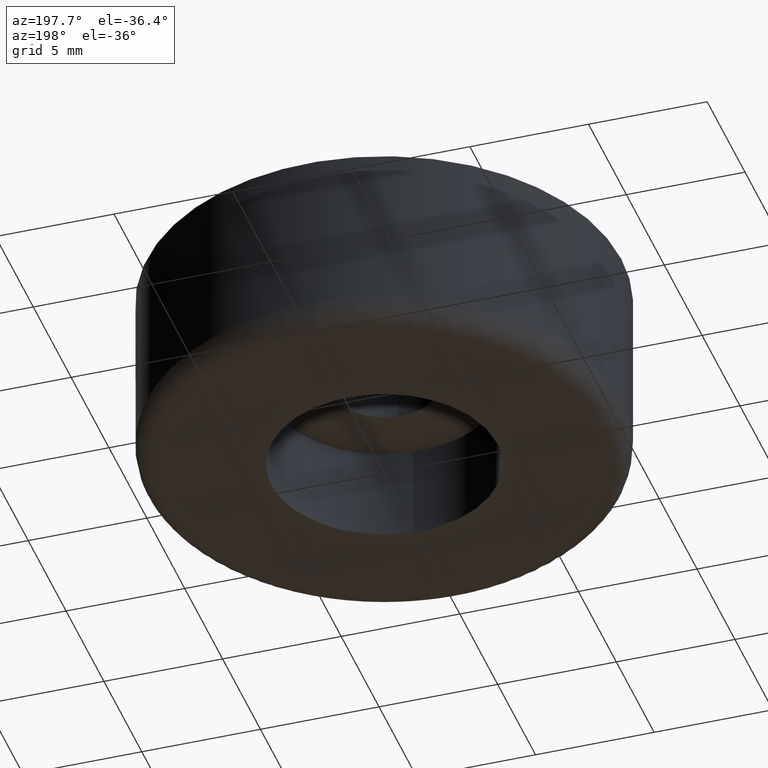
[diagram: clean part render]
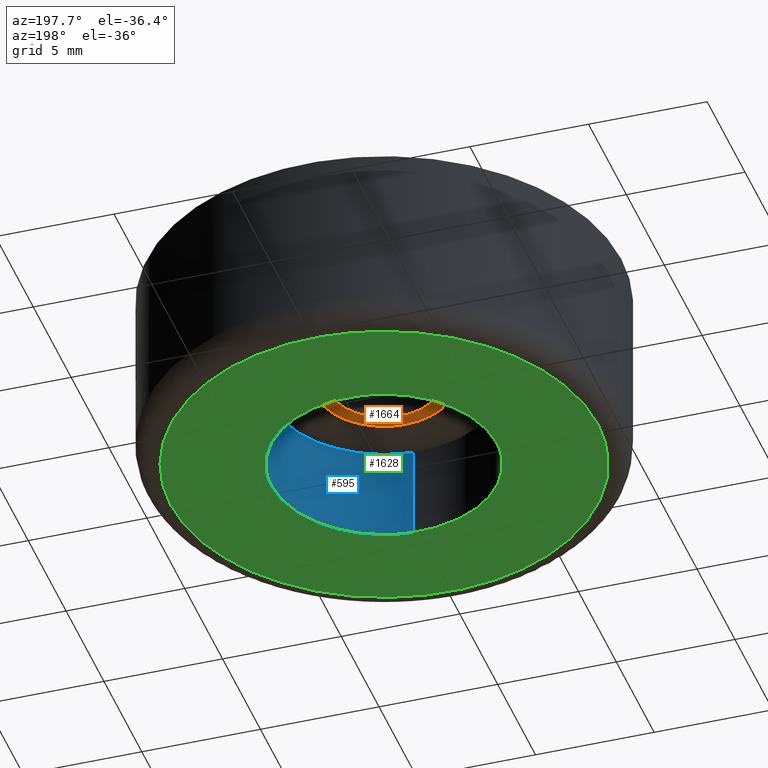
[diagram: same view with three faces highlighted in distinct colors, each labeled with its STEP entity id]
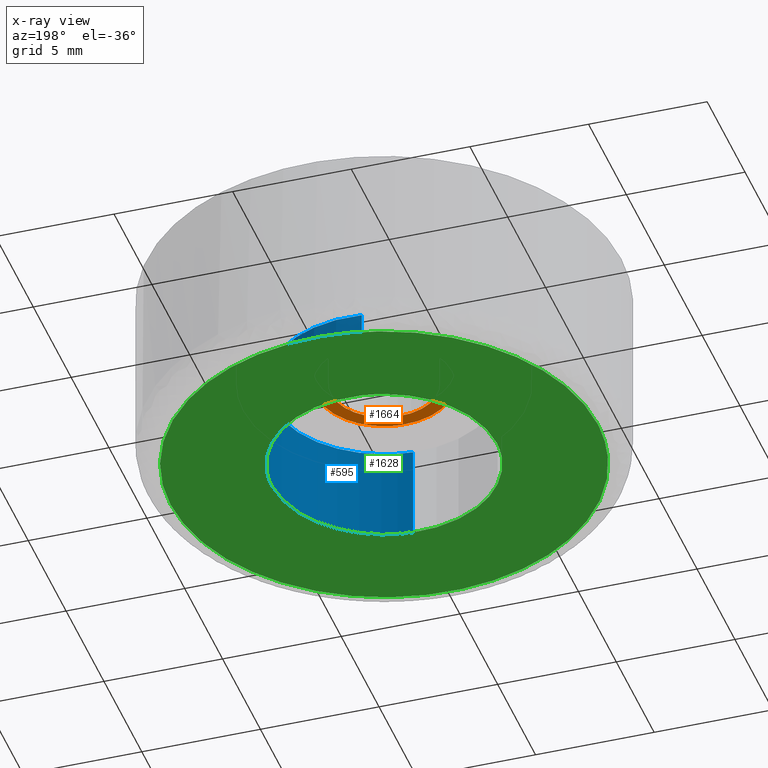
[diagram: x-ray of the same camera — body ghosted, the three highlighted faces saturated]
A machine part, auxiliary view with three faces highlighted in distinct colors.
The next image is the same camera in x-ray (body ghosted, the three faces saturated) — at least one of them is partly hidden behind the body in this view.
Their STEP definitions:

[orange] entity #1664 — the highlighted face is a freeform B-spline surface patch.
#940=CARTESIAN_POINT('',(-0.265572947441810,2.234271919344237,4.0));
#941=VERTEX_POINT('',#940);
#947=CARTESIAN_POINT('',(2.250000000000000,0.0,4.0));
#948=VERTEX_POINT('',#947);
#949=CARTESIAN_POINT('',(-0.265572947441810,2.234271919344238,4.0));
#950=CARTESIAN_POINT('',(-0.133252207379956,2.250000000000000,4.000000000000001));
#951=CARTESIAN_POINT('',(0.0,2.250000000000000,4.0));
#952=CARTESIAN_POINT('',(2.250000000000000,2.250000000000000,4.0));
#953=CARTESIAN_POINT('',(2.250000000000000,0.0,4.0));
#961=(BOUNDED_CURVE()B_SPLINE_CURVE(2,(#949,#950,#951,#952,#953),.UNSPECIFIED.,.F.,.U.)B_SPLINE_CURVE_WITH_KNOTS((3,2,3),(0.229562782172814,0.250000000000000,0.500000000000000),.UNSPECIFIED.)CURVE()GEOMETRIC_REPRESENTATION_ITEM()RATIONAL_B_SPLINE_CURVE((0.956027359169463,0.976056309948015,1.0,0.707106781186547,1.0))REPRESENTATION_ITEM(''));
#962=EDGE_CURVE('',#941,#948,#961,.T.);
#964=CARTESIAN_POINT('',(0.137359213972935,-2.245803296448007,4.0));
#965=VERTEX_POINT('',#964);
#966=CARTESIAN_POINT('',(2.250000000000000,0.0,4.0));
#967=CARTESIAN_POINT('',(2.250000000000000,-2.116588650500986,4.000000000000000));
#968=CARTESIAN_POINT('',(0.137359213972935,-2.245803296448008,4.000000000000001));
#976=(BOUNDED_CURVE()B_SPLINE_CURVE(2,(#966,#967,#968),.UNSPECIFIED.,.F.,.U.)B_SPLINE_CURVE_WITH_KNOTS((3,3),(0.500000000000000,0.739332962238972),.UNSPECIFIED.)CURVE()GEOMETRIC_REPRESENTATION_ITEM()RATIONAL_B_SPLINE_CURVE((1.0,0.719603993286676,0.976072041666779))REPRESENTATION_ITEM(''));
#977=EDGE_CURVE('',#948,#965,#976,.T.);
#1055=CARTESIAN_POINT('',(-2.250000000000000,0.0,4.0));
#1056=VERTEX_POINT('',#1055);
#1057=CARTESIAN_POINT('',(0.137359213972935,-2.245803296448008,4.000000000000001));
#1058=CARTESIAN_POINT('',(0.068743717441387,-2.250000000000000,4.000000000000001));
#1059=CARTESIAN_POINT('',(0.0,-2.250000000000000,4.0));
#1060=CARTESIAN_POINT('',(-2.250000000000000,-2.250000000000000,4.0));
#1061=CARTESIAN_POINT('',(-2.250000000000000,0.0,4.0));
#1069=(BOUNDED_CURVE()B_SPLINE_CURVE(2,(#1057,#1058,#1059,#1060,#1061),.UNSPECIFIED.,.F.,.U.)B_SPLINE_CURVE_WITH_KNOTS((3,2,3),(0.739332962238971,0.750000000000000,1.0),.UNSPECIFIED.)CURVE()GEOMETRIC_REPRESENTATION_ITEM()RATIONAL_B_SPLINE_CURVE((0.976072041666778,0.987502787899870,1.0,0.707106781186547,1.0))REPRESENTATION_ITEM(''));
#1070=EDGE_CURVE('',#965,#1056,#1069,.T.);
#1072=CARTESIAN_POINT('',(-2.250000000000000,0.0,4.0));
#1073=CARTESIAN_POINT('',(-2.250000000000000,1.998396358827245,4.000000000000000));
#1074=CARTESIAN_POINT('',(-0.265572947441810,2.234271919344238,4.0));
#1082=(BOUNDED_CURVE()B_SPLINE_CURVE(2,(#1072,#1073,#1074),.UNSPECIFIED.,.F.,.U.)B_SPLINE_CURVE_WITH_KNOTS((3,3),(0.0,0.229562782172814),.UNSPECIFIED.)CURVE()GEOMETRIC_REPRESENTATION_ITEM()RATIONAL_B_SPLINE_CURVE((1.0,0.731050471238532,0.956027359169463))REPRESENTATION_ITEM(''));
#1083=EDGE_CURVE('',#1056,#941,#1082,.T.);
#1111=CARTESIAN_POINT('',(-0.336397568788283,2.830077150134486,4.0));
#1112=VERTEX_POINT('',#1111);
#1113=CARTESIAN_POINT('',(2.850000000000000,0.0,4.0));
#1114=VERTEX_POINT('',#1113);
#1115=CARTESIAN_POINT('',(-0.336397568788284,2.830077150134486,4.0));
#1116=CARTESIAN_POINT('',(-0.168788741024640,2.850000000000001,4.000000000000000));
#1117=CARTESIAN_POINT('',(0.0,2.850000000000000,4.0));
#1118=CARTESIAN_POINT('',(2.850000000000000,2.850000000000000,4.0));
#1119=CARTESIAN_POINT('',(2.850000000000000,0.0,4.0));
#1127=(BOUNDED_CURVE()B_SPLINE_CURVE(2,(#1115,#1116,#1117,#1118,#1119),.UNSPECIFIED.,.F.,.U.)B_SPLINE_CURVE_WITH_KNOTS((3,2,3),(0.229562473513671,0.250000000000000,0.500000000000000),.UNSPECIFIED.)CURVE()GEOMETRIC_REPRESENTATION_ITEM()RATIONAL_B_SPLINE_CURVE((0.956026754184018,0.976055948331336,1.0,0.707106781186547,1.0))REPRESENTATION_ITEM(''));
#1128=EDGE_CURVE('',#1112,#1114,#1127,.T.);
#1169=CARTESIAN_POINT('',(0.173987271737828,-2.844684240697390,3.999999999999983));
#1170=VERTEX_POINT('',#1169);
#1176=CARTESIAN_POINT('',(2.850000000000000,0.0,4.0));
#1177=CARTESIAN_POINT('',(2.849999999999999,-2.681013297165420,4.000000000000001));
#1178=CARTESIAN_POINT('',(0.173987271737828,-2.844684240697390,3.999999999999984));
#1186=(BOUNDED_CURVE()B_SPLINE_CURVE(2,(#1176,#1177,#1178),.UNSPECIFIED.,.F.,.U.)B_SPLINE_CURVE_WITH_KNOTS((3,3),(0.500000000000000,0.739333026897277),.UNSPECIFIED.)CURVE()GEOMETRIC_REPRESENTATION_ITEM()RATIONAL_B_SPLINE_CURVE((1.0,0.719603917534760,0.976072180241874))REPRESENTATION_ITEM(''));
#1187=EDGE_CURVE('',#1114,#1170,#1186,.T.);
#1210=CARTESIAN_POINT('',(-2.850000000000000,0.0,4.0));
#1211=VERTEX_POINT('',#1210);
#1212=CARTESIAN_POINT('',(-2.850000000000000,0.0,4.0));
#1213=CARTESIAN_POINT('',(-2.850000000000000,2.531297398931633,4.0));
#1214=CARTESIAN_POINT('',(-0.336397568788284,2.830077150134486,4.0));
#1222=(BOUNDED_CURVE()B_SPLINE_CURVE(2,(#1212,#1213,#1214),.UNSPECIFIED.,.F.,.U.)B_SPLINE_CURVE_WITH_KNOTS((3,3),(0.0,0.229562473513671),.UNSPECIFIED.)CURVE()GEOMETRIC_REPRESENTATION_ITEM()RATIONAL_B_SPLINE_CURVE((1.0,0.731050832855212,0.956026754184018))REPRESENTATION_ITEM(''));
#1223=EDGE_CURVE('',#1211,#1112,#1222,.T.);
#1225=CARTESIAN_POINT('',(0.173987271737828,-2.844684240697390,3.999999999999984));
#1226=CARTESIAN_POINT('',(0.087074840938346,-2.850000000000000,4.0));
#1227=CARTESIAN_POINT('',(0.0,-2.850000000000000,4.0));
#1228=CARTESIAN_POINT('',(-2.850000000000000,-2.850000000000000,4.0));
#1229=CARTESIAN_POINT('',(-2.850000000000000,0.0,4.0));
#1237=(BOUNDED_CURVE()B_SPLINE_CURVE(2,(#1225,#1226,#1227,#1228,#1229),.UNSPECIFIED.,.F.,.U.)B_SPLINE_CURVE_WITH_KNOTS((3,2,3),(0.739333026897277,0.750000000000000,1.0),.UNSPECIFIED.)CURVE()GEOMETRIC_REPRESENTATION_ITEM()RATIONAL_B_SPLINE_CURVE((0.976072180241874,0.987502863651787,1.0,0.707106781186547,1.0))REPRESENTATION_ITEM(''));
#1238=EDGE_CURVE('',#1170,#1211,#1237,.T.);
#1647=CARTESIAN_POINT('',(-3.134714861572847,-3.134645729500548,4.0));
#1648=CARTESIAN_POINT('',(3.134714708686933,-3.134645729500548,4.0));
#1649=CARTESIAN_POINT('',(-3.134714861572847,3.134663158494727,4.0));
#1650=CARTESIAN_POINT('',(3.134714708686933,3.134663158494727,4.0));
#1651=B_SPLINE_SURFACE_WITH_KNOTS('',1,1,((#1647,#1649),(#1648,#1650)),.UNSPECIFIED.,.F.,.F.,.U.,(2,2),(2,2),(0.0,6.269429570259780),(0.0,6.269308887995274),.UNSPECIFIED.);
#1652=ORIENTED_EDGE('',*,*,#1223,.T.);
#1653=ORIENTED_EDGE('',*,*,#1128,.T.);
#1654=ORIENTED_EDGE('',*,*,#1187,.T.);
#1655=ORIENTED_EDGE('',*,*,#1238,.T.);
#1656=EDGE_LOOP('',(#1652,#1653,#1654,#1655));
#1657=FACE_OUTER_BOUND('',#1656,.T.);
#1658=ORIENTED_EDGE('',*,*,#977,.F.);
#1659=ORIENTED_EDGE('',*,*,#962,.F.);
#1660=ORIENTED_EDGE('',*,*,#1083,.F.);
#1661=ORIENTED_EDGE('',*,*,#1070,.F.);
#1662=EDGE_LOOP('',(#1658,#1659,#1660,#1661));
#1663=FACE_BOUND('',#1662,.T.);
#1664=ADVANCED_FACE('',(#1657,#1663),#1651,.F.);

[blue] entity #595 — the highlighted face is a freeform B-spline surface patch.
#493=CARTESIAN_POINT('',(-0.560662614619603,4.716795250227415,4.100000000000001));
#494=CARTESIAN_POINT('',(-0.425669961030394,4.732841173380876,4.100000000000000));
#495=CARTESIAN_POINT('',(-0.289980562790571,4.741140292503867,4.100000000000000));
#496=CARTESIAN_POINT('',(4.451159729713296,5.031120855294438,4.100000000000000));
#497=CARTESIAN_POINT('',(4.741140292503867,0.289980562790571,4.100000000000000));
#498=CARTESIAN_POINT('',(5.031120855294438,-4.451159729713296,4.100000000000000));
#499=CARTESIAN_POINT('',(0.289980562790571,-4.741140292503867,4.100000000000000));
#500=CARTESIAN_POINT('',(-0.560662614619603,4.716795250227415,-0.102500000000000));
#501=CARTESIAN_POINT('',(-0.425669961030394,4.732841173380876,-0.102500000000000));
#502=CARTESIAN_POINT('',(-0.289980562790571,4.741140292503867,-0.102500000000000));
#503=CARTESIAN_POINT('',(4.451159729713296,5.031120855294438,-0.102500000000000));
#504=CARTESIAN_POINT('',(4.741140292503867,0.289980562790571,-0.102500000000000));
#505=CARTESIAN_POINT('',(5.031120855294438,-4.451159729713296,-0.102500000000000));
#506=CARTESIAN_POINT('',(0.289980562790571,-4.741140292503867,-0.102500000000000));
#514=(BOUNDED_SURFACE()B_SPLINE_SURFACE(2,1,((#493,#500),(#494,#501),(#495,#502),(#496,#503),(#497,#504),(#498,#505),(#499,#506)),.UNSPECIFIED.,.F.,.F.,.U.)B_SPLINE_SURFACE_WITH_KNOTS((3,2,2,3),(2,2),(0.0,0.314802307403553,8.184859992492356,16.054917677581159),(0.0,4.202500000000000),.UNSPECIFIED.)GEOMETRIC_REPRESENTATION_ITEM()RATIONAL_B_SPLINE_SURFACE(((0.977505800795127,0.977505800795127),(0.988284271247462,0.988284271247462),(1.0,1.0),(0.707106781186548,0.707106781186548),(1.0,1.0),(0.707106781186548,0.707106781186548),(1.0,1.0)))REPRESENTATION_ITEM('')SURFACE());
#515=CARTESIAN_POINT('',(-0.560657902490310,4.716795810330636,-3.589747E-014));
#516=VERTEX_POINT('',#515);
#517=CARTESIAN_POINT('',(4.750000000000000,0.0,0.0));
#518=VERTEX_POINT('',#517);
#519=CARTESIAN_POINT('',(-0.560657902490310,4.716795810330636,-3.589747E-014));
#520=CARTESIAN_POINT('',(-0.281312187374265,4.750000000000000,0.0));
#521=CARTESIAN_POINT('',(0.0,4.750000000000000,0.0));
#522=CARTESIAN_POINT('',(4.750000000000000,4.750000000000000,0.0));
#523=CARTESIAN_POINT('',(4.750000000000000,0.0,0.0));
#531=(BOUNDED_CURVE()B_SPLINE_CURVE(2,(#519,#520,#521,#522,#523),.UNSPECIFIED.,.F.,.U.)B_SPLINE_CURVE_WITH_KNOTS((3,2,3),(0.229562642351722,0.250000000000000,0.500000000000000),.UNSPECIFIED.)CURVE()GEOMETRIC_REPRESENTATION_ITEM()RATIONAL_B_SPLINE_CURVE((0.956027085113775,0.976056146137416,1.0,0.707106781186548,1.0))REPRESENTATION_ITEM(''));
#532=EDGE_CURVE('',#516,#518,#531,.T.);
#533=ORIENTED_EDGE('',*,*,#532,.T.);
#534=CARTESIAN_POINT('',(0.289974620353292,-4.741140655951424,-3.846923E-014));
#535=VERTEX_POINT('',#534);
#536=CARTESIAN_POINT('',(4.750000000000000,0.0,0.0));
#537=CARTESIAN_POINT('',(4.750000000000001,-4.468359428803495,0.0));
#538=CARTESIAN_POINT('',(0.289974620353292,-4.741140655951424,-3.846923E-014));
#546=(BOUNDED_CURVE()B_SPLINE_CURVE(2,(#536,#537,#538),.UNSPECIFIED.,.F.,.U.)B_SPLINE_CURVE_WITH_KNOTS((3,3),(0.500000000000000,0.739333178508220),.UNSPECIFIED.)CURVE()GEOMETRIC_REPRESENTATION_ITEM()RATIONAL_B_SPLINE_CURVE((1.0,0.719603739911491,0.976072505173386))REPRESENTATION_ITEM(''));
#547=EDGE_CURVE('',#518,#535,#546,.T.);
#548=ORIENTED_EDGE('',*,*,#547,.T.);
#549=CARTESIAN_POINT('',(0.289974693720068,-4.741140651464304,4.0));
#550=VERTEX_POINT('',#549);
#551=CARTESIAN_POINT('',(0.289974693720068,-4.741140651464304,4.0));
#552=CARTESIAN_POINT('',(0.289974620353292,-4.741140655951424,-3.846923E-014));
#553=QUASI_UNIFORM_CURVE('',1,(#551,#552),.UNSPECIFIED.,.F.,.U.);
#554=EDGE_CURVE('',#550,#535,#553,.T.);
#555=ORIENTED_EDGE('',*,*,#554,.F.);
#556=CARTESIAN_POINT('',(4.750000000000000,0.0,4.0));
#557=VERTEX_POINT('',#556);
#558=CARTESIAN_POINT('',(4.750000000000000,0.0,4.0));
#559=CARTESIAN_POINT('',(4.750000000000000,-4.468359359528671,4.0));
#560=CARTESIAN_POINT('',(0.289974693720068,-4.741140651464304,4.0));
#568=(BOUNDED_CURVE()B_SPLINE_CURVE(2,(#558,#559,#560),.UNSPECIFIED.,.F.,.U.)B_SPLINE_CURVE_WITH_KNOTS((3,3),(0.500000000000000,0.739333175838144),.UNSPECIFIED.)CURVE()GEOMETRIC_REPRESENTATION_ITEM()RATIONAL_B_SPLINE_CURVE((1.0,0.719603743039680,0.976072499450894))REPRESENTATION_ITEM(''));
#569=EDGE_CURVE('',#557,#550,#568,.T.);
#570=ORIENTED_EDGE('',*,*,#569,.F.);
#571=CARTESIAN_POINT('',(-0.560657960675820,4.716795803414524,4.0));
#572=VERTEX_POINT('',#571);
#573=CARTESIAN_POINT('',(-0.560657960675820,4.716795803414524,4.000000000000000));
#574=CARTESIAN_POINT('',(-0.281312216774577,4.750000000000000,4.0));
#575=CARTESIAN_POINT('',(0.0,4.750000000000000,4.0));
#576=CARTESIAN_POINT('',(4.750000000000000,4.750000000000000,4.000000000000000));
#577=CARTESIAN_POINT('',(4.750000000000000,0.0,4.0));
#585=(BOUNDED_CURVE()B_SPLINE_CURVE(2,(#573,#574,#575,#576,#577),.UNSPECIFIED.,.F.,.U.)B_SPLINE_CURVE_WITH_KNOTS((3,2,3),(0.229562640266929,0.250000000000000,0.500000000000000),.UNSPECIFIED.)CURVE()GEOMETRIC_REPRESENTATION_ITEM()RATIONAL_B_SPLINE_CURVE((0.956027081027489,0.976056143694930,1.0,0.707106781186548,1.0))REPRESENTATION_ITEM(''));
#586=EDGE_CURVE('',#572,#557,#585,.T.);
#587=ORIENTED_EDGE('',*,*,#586,.F.);
#588=CARTESIAN_POINT('',(-0.560657960675820,4.716795803414524,4.0));
#589=CARTESIAN_POINT('',(-0.560657902490310,4.716795810330636,-3.589747E-014));
#590=QUASI_UNIFORM_CURVE('',1,(#588,#589),.UNSPECIFIED.,.F.,.U.);
#591=EDGE_CURVE('',#572,#516,#590,.T.);
#592=ORIENTED_EDGE('',*,*,#591,.T.);
#593=EDGE_LOOP('',(#533,#548,#555,#570,#587,#592));
#594=FACE_OUTER_BOUND('',#593,.T.);
#595=ADVANCED_FACE('',(#594),#514,.F.);

[green] entity #1628 — the highlighted face is a freeform B-spline surface patch.
#515=CARTESIAN_POINT('',(-0.560657902490310,4.716795810330636,-3.589747E-014));
#516=VERTEX_POINT('',#515);
#517=CARTESIAN_POINT('',(4.750000000000000,0.0,0.0));
#518=VERTEX_POINT('',#517);
#519=CARTESIAN_POINT('',(-0.560657902490310,4.716795810330636,-3.589747E-014));
#520=CARTESIAN_POINT('',(-0.281312187374265,4.750000000000000,0.0));
#521=CARTESIAN_POINT('',(0.0,4.750000000000000,0.0));
#522=CARTESIAN_POINT('',(4.750000000000000,4.750000000000000,0.0));
#523=CARTESIAN_POINT('',(4.750000000000000,0.0,0.0));
#531=(BOUNDED_CURVE()B_SPLINE_CURVE(2,(#519,#520,#521,#522,#523),.UNSPECIFIED.,.F.,.U.)B_SPLINE_CURVE_WITH_KNOTS((3,2,3),(0.229562642351722,0.250000000000000,0.500000000000000),.UNSPECIFIED.)CURVE()GEOMETRIC_REPRESENTATION_ITEM()RATIONAL_B_SPLINE_CURVE((0.956027085113775,0.976056146137416,1.0,0.707106781186548,1.0))REPRESENTATION_ITEM(''));
#532=EDGE_CURVE('',#516,#518,#531,.T.);
#534=CARTESIAN_POINT('',(0.289974620353292,-4.741140655951424,-3.846923E-014));
#535=VERTEX_POINT('',#534);
#536=CARTESIAN_POINT('',(4.750000000000000,0.0,0.0));
#537=CARTESIAN_POINT('',(4.750000000000001,-4.468359428803495,0.0));
#538=CARTESIAN_POINT('',(0.289974620353292,-4.741140655951424,-3.846923E-014));
#546=(BOUNDED_CURVE()B_SPLINE_CURVE(2,(#536,#537,#538),.UNSPECIFIED.,.F.,.U.)B_SPLINE_CURVE_WITH_KNOTS((3,3),(0.500000000000000,0.739333178508220),.UNSPECIFIED.)CURVE()GEOMETRIC_REPRESENTATION_ITEM()RATIONAL_B_SPLINE_CURVE((1.0,0.719603739911491,0.976072505173386))REPRESENTATION_ITEM(''));
#547=EDGE_CURVE('',#518,#535,#546,.T.);
#614=CARTESIAN_POINT('',(-4.750000000000000,0.0,0.0));
#615=VERTEX_POINT('',#614);
#616=CARTESIAN_POINT('',(-4.750000000000000,0.0,0.0));
#617=CARTESIAN_POINT('',(-4.750000000000000,4.218833242595861,0.0));
#618=CARTESIAN_POINT('',(-0.560657902490310,4.716795810330636,-3.589747E-014));
#626=(BOUNDED_CURVE()B_SPLINE_CURVE(2,(#616,#617,#618),.UNSPECIFIED.,.F.,.U.)B_SPLINE_CURVE_WITH_KNOTS((3,3),(0.0,0.229562642351722),.UNSPECIFIED.)CURVE()GEOMETRIC_REPRESENTATION_ITEM()RATIONAL_B_SPLINE_CURVE((1.0,0.731050635049131,0.956027085113775))REPRESENTATION_ITEM(''));
#627=EDGE_CURVE('',#615,#516,#626,.T.);
#661=CARTESIAN_POINT('',(0.289974620353292,-4.741140655951424,-3.846923E-014));
#662=CARTESIAN_POINT('',(0.145122646118935,-4.750000000000000,0.0));
#663=CARTESIAN_POINT('',(0.0,-4.750000000000000,0.0));
#664=CARTESIAN_POINT('',(-4.750000000000000,-4.750000000000000,0.0));
#665=CARTESIAN_POINT('',(-4.750000000000000,0.0,0.0));
#673=(BOUNDED_CURVE()B_SPLINE_CURVE(2,(#661,#662,#663,#664,#665),.UNSPECIFIED.,.F.,.U.)B_SPLINE_CURVE_WITH_KNOTS((3,2,3),(0.739333178508220,0.750000000000000,1.0),.UNSPECIFIED.)CURVE()GEOMETRIC_REPRESENTATION_ITEM()RATIONAL_B_SPLINE_CURVE((0.976072505173386,0.987503041275057,1.0,0.707106781186548,1.0))REPRESENTATION_ITEM(''));
#674=EDGE_CURVE('',#535,#615,#673,.T.);
#1490=CARTESIAN_POINT('',(-0.226170859030829,8.997157703990462,1.874299E-016));
#1491=VERTEX_POINT('',#1490);
#1492=CARTESIAN_POINT('',(9.0,0.0,0.0));
#1493=VERTEX_POINT('',#1492);
#1494=CARTESIAN_POINT('',(-0.226170859030829,8.997157703990462,1.874299E-016));
#1495=CARTESIAN_POINT('',(-0.113103289140123,8.999999999999998,0.0));
#1496=CARTESIAN_POINT('',(0.0,9.0,0.0));
#1497=CARTESIAN_POINT('',(9.0,9.0,0.0));
#1498=CARTESIAN_POINT('',(9.0,0.0,0.0));
#1506=(BOUNDED_CURVE()B_SPLINE_CURVE(2,(#1494,#1495,#1496,#1497,#1498),.UNSPECIFIED.,.F.,.U.)B_SPLINE_CURVE_WITH_KNOTS((3,2,3),(0.245579891768653,0.250000000000000,0.500000000000000),.UNSPECIFIED.)CURVE()GEOMETRIC_REPRESENTATION_ITEM()RATIONAL_B_SPLINE_CURVE((0.989826157678966,0.994821521090467,1.0,0.707106781186547,1.0))REPRESENTATION_ITEM(''));
#1507=EDGE_CURVE('',#1491,#1493,#1506,.T.);
#1526=CARTESIAN_POINT('',(-8.997157704003575,-0.226170859032163,1.874299E-016));
#1527=VERTEX_POINT('',#1526);
#1541=CARTESIAN_POINT('',(9.0,0.0,0.0));
#1542=CARTESIAN_POINT('',(9.0,-9.0,0.0));
#1543=CARTESIAN_POINT('',(0.0,-9.0,0.0));
#1544=CARTESIAN_POINT('',(-8.776600885565950,-9.000000000000002,0.0));
#1545=CARTESIAN_POINT('',(-8.997157704003575,-0.226170859032163,1.874299E-016));
#1553=(BOUNDED_CURVE()B_SPLINE_CURVE(2,(#1541,#1542,#1543,#1544,#1545),.UNSPECIFIED.,.F.,.U.)B_SPLINE_CURVE_WITH_KNOTS((3,2,3),(0.500000000000000,0.750000000000000,0.995579891768614),.UNSPECIFIED.)CURVE()GEOMETRIC_REPRESENTATION_ITEM()RATIONAL_B_SPLINE_CURVE((1.0,0.707106781186547,1.0,0.712285260096126,0.989826157678878))REPRESENTATION_ITEM(''));
#1554=EDGE_CURVE('',#1493,#1527,#1553,.T.);
#1576=CARTESIAN_POINT('',(-9.0,0.0,0.0));
#1577=VERTEX_POINT('',#1576);
#1578=CARTESIAN_POINT('',(-9.0,0.0,0.0));
#1579=CARTESIAN_POINT('',(-9.000000000000002,8.776600885567889,0.0));
#1580=CARTESIAN_POINT('',(-0.226170859030829,8.997157703990462,1.874299E-016));
#1588=(BOUNDED_CURVE()B_SPLINE_CURVE(2,(#1578,#1579,#1580),.UNSPECIFIED.,.F.,.U.)B_SPLINE_CURVE_WITH_KNOTS((3,3),(0.0,0.245579891768653),.UNSPECIFIED.)CURVE()GEOMETRIC_REPRESENTATION_ITEM()RATIONAL_B_SPLINE_CURVE((1.0,0.712285260096080,0.989826157678966))REPRESENTATION_ITEM(''));
#1589=EDGE_CURVE('',#1577,#1491,#1588,.T.);
#1591=CARTESIAN_POINT('',(-8.997157704003575,-0.226170859032163,1.874299E-016));
#1592=CARTESIAN_POINT('',(-9.000000000000002,-0.113103289141129,0.0));
#1593=CARTESIAN_POINT('',(-9.0,0.0,0.0));
#1601=(BOUNDED_CURVE()B_SPLINE_CURVE(2,(#1591,#1592,#1593),.UNSPECIFIED.,.F.,.U.)B_SPLINE_CURVE_WITH_KNOTS((3,3),(0.995579891768614,1.0),.UNSPECIFIED.)CURVE()GEOMETRIC_REPRESENTATION_ITEM()RATIONAL_B_SPLINE_CURVE((0.989826157678877,0.994821521090421,1.0))REPRESENTATION_ITEM(''));
#1602=EDGE_CURVE('',#1527,#1577,#1601,.T.);
#1611=CARTESIAN_POINT('',(-9.899099965112507,-9.898212029364723,0.0));
#1612=CARTESIAN_POINT('',(9.899100447910129,-9.898212029364723,0.0));
#1613=CARTESIAN_POINT('',(-9.899099965112507,9.896080690907740,0.0));
#1614=CARTESIAN_POINT('',(9.899100447910129,9.896080690907740,0.0));
#1615=B_SPLINE_SURFACE_WITH_KNOTS('',1,1,((#1611,#1613),(#1612,#1614)),.UNSPECIFIED.,.F.,.F.,.U.,(2,2),(2,2),(0.0,19.798200413022631),(0.0,19.794292720272459),.UNSPECIFIED.);
#1616=ORIENTED_EDGE('',*,*,#1589,.T.);
#1617=ORIENTED_EDGE('',*,*,#1507,.T.);
#1618=ORIENTED_EDGE('',*,*,#1554,.T.);
#1619=ORIENTED_EDGE('',*,*,#1602,.T.);
#1620=EDGE_LOOP('',(#1616,#1617,#1618,#1619));
#1621=FACE_OUTER_BOUND('',#1620,.T.);
#1622=ORIENTED_EDGE('',*,*,#547,.F.);
#1623=ORIENTED_EDGE('',*,*,#532,.F.);
#1624=ORIENTED_EDGE('',*,*,#627,.F.);
#1625=ORIENTED_EDGE('',*,*,#674,.F.);
#1626=EDGE_LOOP('',(#1622,#1623,#1624,#1625));
#1627=FACE_BOUND('',#1626,.T.);
#1628=ADVANCED_FACE('',(#1621,#1627),#1615,.F.);